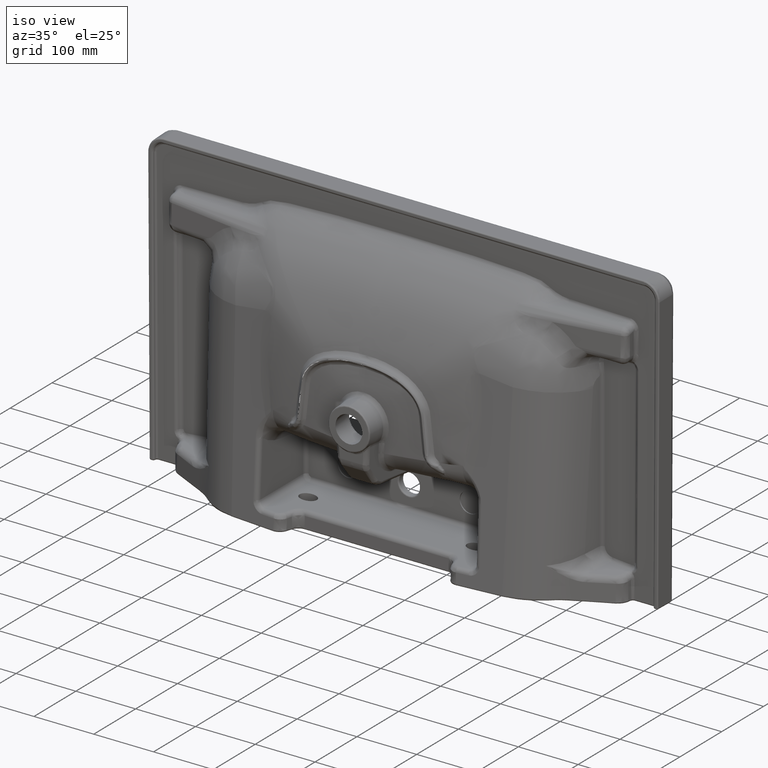
[diagram: clean part render]
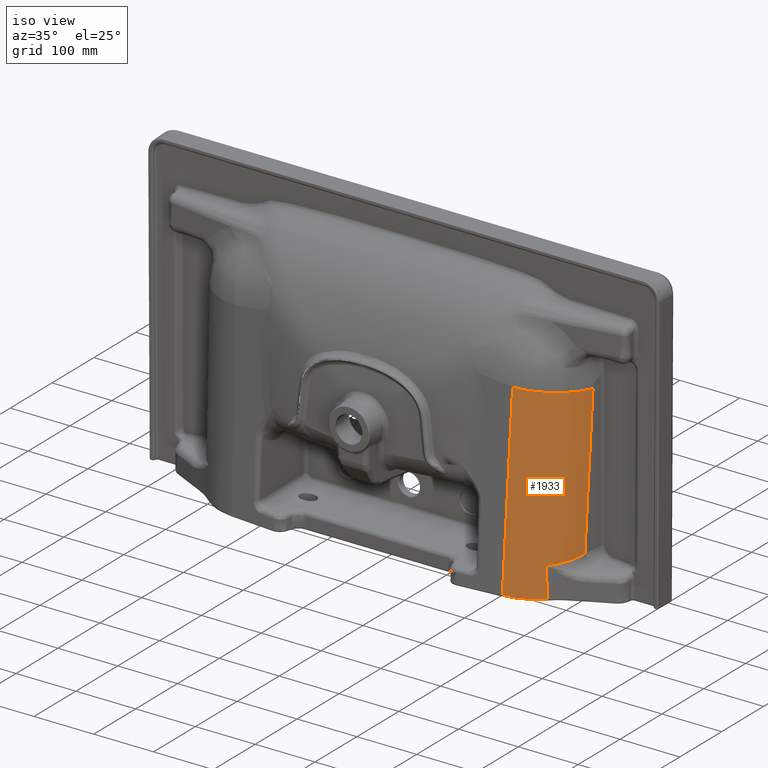
[diagram: same view with one face highlighted and labeled with its STEP entity id]
A machine part, iso view. The second image highlights one B-rep face of the part: STEP entity #1933.
In plain terms, the highlighted cylindrical surface (partial cylindrical patch) has radius 100 mm, axis along (0.0176, 0.0541, 0.9984).
Its self-contained STEP definition (entity closure, byte-faithful):
#207=CYLINDRICAL_SURFACE('',#8075,100.);
#683=CIRCLE('',#8031,100.);
#1179=B_SPLINE_CURVE_WITH_KNOTS('',3,(#13875,#13876,#13877,#13878,#13879,
#13880),.UNSPECIFIED.,.F.,.F.,(4,2,4),(0.,0.5,1.),.UNSPECIFIED.);
#1278=B_SPLINE_CURVE_WITH_KNOTS('',3,(#25513,#25514,#25515,#25516,#25517,
#25518,#25519),.UNSPECIFIED.,.F.,.F.,(4,3,4),(0.,0.79831511407194,1.),
 .UNSPECIFIED.);
#1933=ADVANCED_FACE('',(#2491),#207,.T.);
#2491=FACE_OUTER_BOUND('',#3017,.T.);
#3017=EDGE_LOOP('',(#4344,#4345,#4346,#4347,#4348,#4349));
#3384=ELLIPSE('',#8074,100.153982948493,100.);
#4344=ORIENTED_EDGE('',*,*,#7068,.T.);
#4345=ORIENTED_EDGE('',*,*,#7070,.T.);
#4346=ORIENTED_EDGE('',*,*,#7057,.F.);
#4347=ORIENTED_EDGE('',*,*,#6905,.F.);
#4348=ORIENTED_EDGE('',*,*,#6933,.T.);
#4349=ORIENTED_EDGE('',*,*,#6953,.T.);
#6050=VERTEX_POINT('',#12909);
#6094=VERTEX_POINT('',#13874);
#6109=VERTEX_POINT('',#14419);
#6110=VERTEX_POINT('',#14501);
#6175=VERTEX_POINT('',#25520);
#6181=VERTEX_POINT('',#25937);
#6905=EDGE_CURVE('',#6094,#6050,#1179,.T.);
#6933=EDGE_CURVE('',#6094,#6110,#7771,.T.);
#6953=EDGE_CURVE('',#6110,#6109,#683,.T.);
#7057=EDGE_CURVE('',#6050,#6175,#1278,.T.);
#7068=EDGE_CURVE('',#6109,#6181,#7783,.T.);
#7070=EDGE_CURVE('',#6181,#6175,#3384,.T.);
#7771=LINE('',#14503,#7856);
#7783=LINE('',#25938,#7868);
#7856=VECTOR('',#8614,1.);
#7868=VECTOR('',#8714,1.);
#8031=AXIS2_PLACEMENT_3D('',#14774,#8622,#8623);
#8074=AXIS2_PLACEMENT_3D('',#25978,#8717,#8718);
#8075=AXIS2_PLACEMENT_3D('',#25979,#8719,#8720);
#8614=DIRECTION('',(0.0175668262637915,0.054065131992489,0.998382876514643));
#8622=DIRECTION('',(-0.0175668262637915,-0.0540651319924891,-0.998382876514643));
#8623=DIRECTION('',(0.,-0.998536959352954,0.0540734759947623));
#8714=DIRECTION('',(-0.0175668262637915,-0.054065131992489,-0.998382876514643));
#8717=DIRECTION('',(0.000438495448374363,0.00134955022258806,0.999998993217462));
#8718=DIRECTION('',(0.309016683262034,0.951055558788061,-0.00141900107876369));
#8719=DIRECTION('',(0.0175668262637915,0.054065131992489,0.998382876514643));
#8720=DIRECTION('',(0.,-0.998536959352954,0.0540734759947621));
#12909=CARTESIAN_POINT('',(278.346475406026,-116.420959280736,-185.773990598409));
#13874=CARTESIAN_POINT('',(309.928147916244,-69.6846208071743,-177.045097225299));
#13875=CARTESIAN_POINT('',(309.928147916244,-69.6846208071743,-177.045097225299));
#13876=CARTESIAN_POINT('',(306.98796328191,-78.7335786525188,-179.068759935147));
#13877=CARTESIAN_POINT('',(302.879797273587,-87.1854468278208,-180.815768361556));
#13878=CARTESIAN_POINT('',(292.340455464837,-102.901625584476,-183.759544753548));
#13879=CARTESIAN_POINT('',(285.803770091685,-110.216447054374,-184.958245913241));
#13880=CARTESIAN_POINT('',(278.346475406026,-116.420959280736,-185.773990598409));
#14419=CARTESIAN_POINT('',(227.875041977147,-124.952485080037,73.9988433832936));
#14501=CARTESIAN_POINT('',(314.2532497642,-56.3733260531116,68.7652477589992));
#14503=CARTESIAN_POINT('',(317.533894468748,-46.2765398546051,255.215517589445));
#14774=CARTESIAN_POINT('',(219.147598134685,-25.4716266156169,68.7652477589992));
#25513=CARTESIAN_POINT('',(278.346475406026,-116.420959280736,-185.773990598409));
#25514=CARTESIAN_POINT('',(278.927675613915,-116.466766680422,-199.081862078741));
#25515=CARTESIAN_POINT('',(279.446059762626,-116.543235188788,-212.392457390729));
#25516=CARTESIAN_POINT('',(279.920140354827,-116.641300387174,-225.704292957078));
#25517=CARTESIAN_POINT('',(280.039912106579,-116.666075585294,-229.06739596328));
#25518=CARTESIAN_POINT('',(280.156802714755,-116.692256761808,-232.43059253676));
#25519=CARTESIAN_POINT('',(280.271017290603,-116.719745729652,-235.793867770902));
#25520=CARTESIAN_POINT('',(280.271017290603,-116.719745729652,-235.793867770902));
#25937=CARTESIAN_POINT('',(222.425192565761,-141.725396893544,-235.734756198446));
#25938=CARTESIAN_POINT('',(224.637986713736,-134.915116773163,-109.974089279128));
#25978=CARTESIAN_POINT('',(213.787533139227,-41.9682104103278,-235.865596089054));
#25979=CARTESIAN_POINT('',(215.910542871274,-35.4342583087429,-115.207684903422));